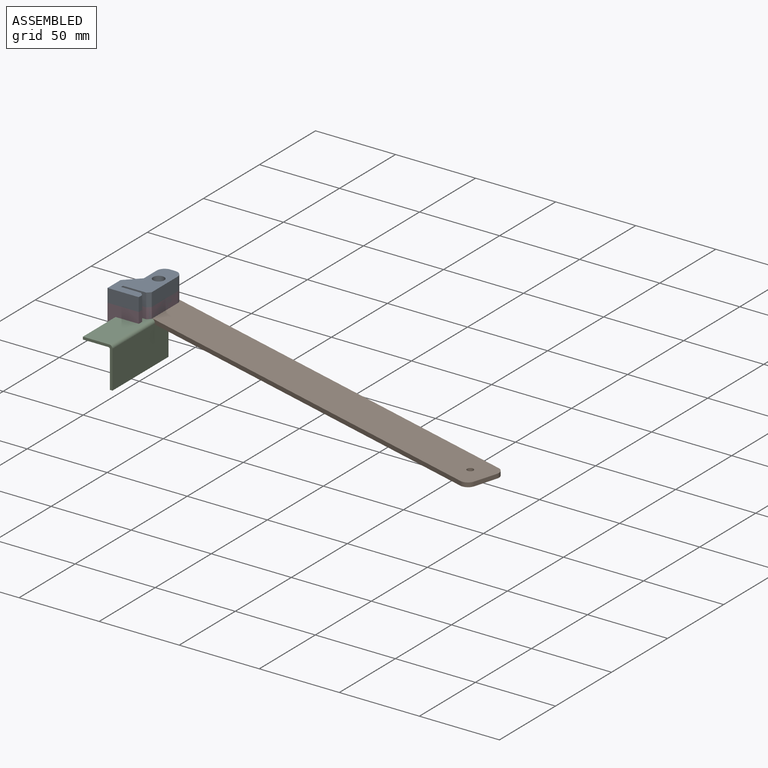
[diagram: assembled view]
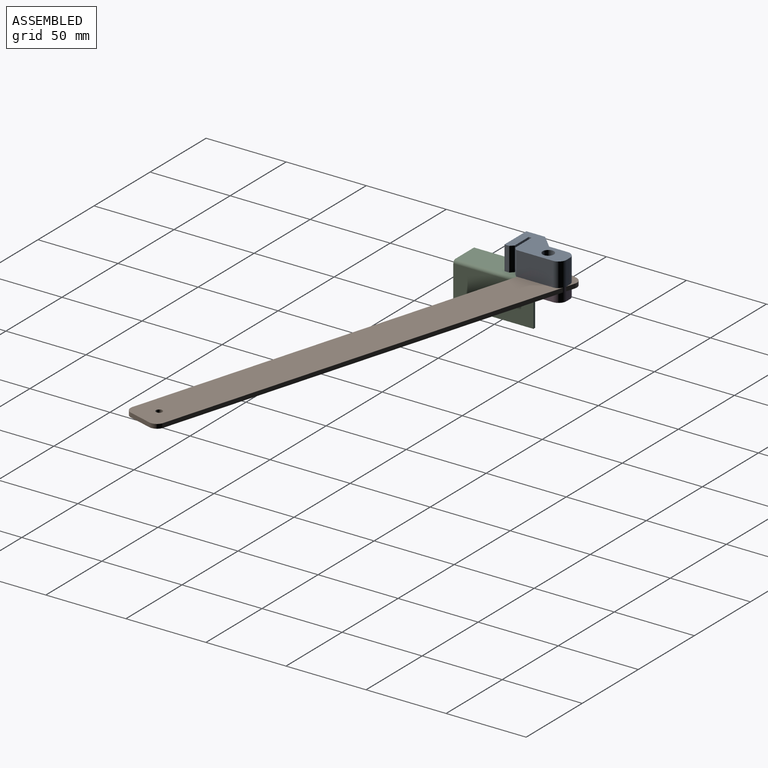
[diagram: assembled view, second angle]
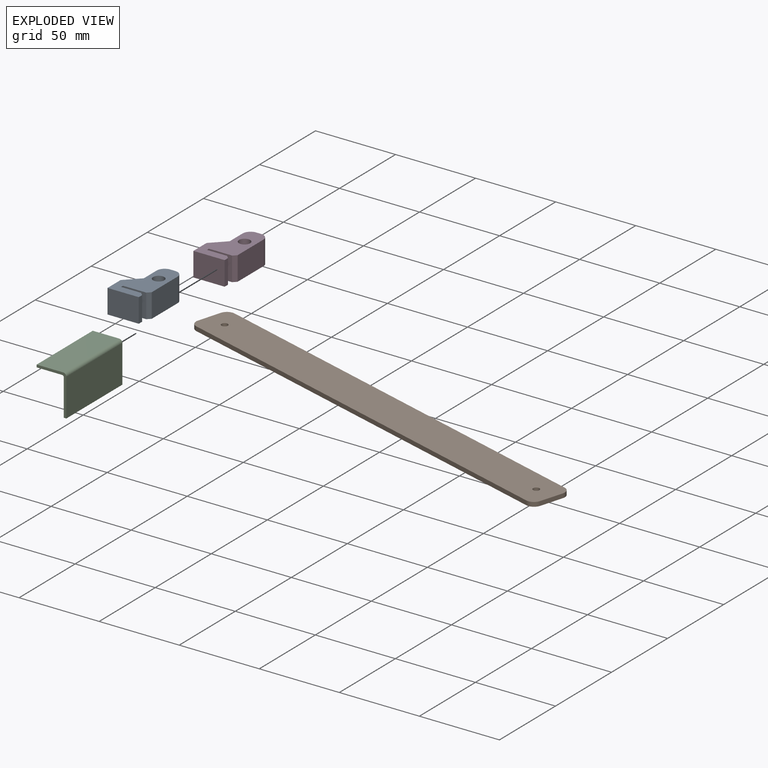
[diagram: exploded view]
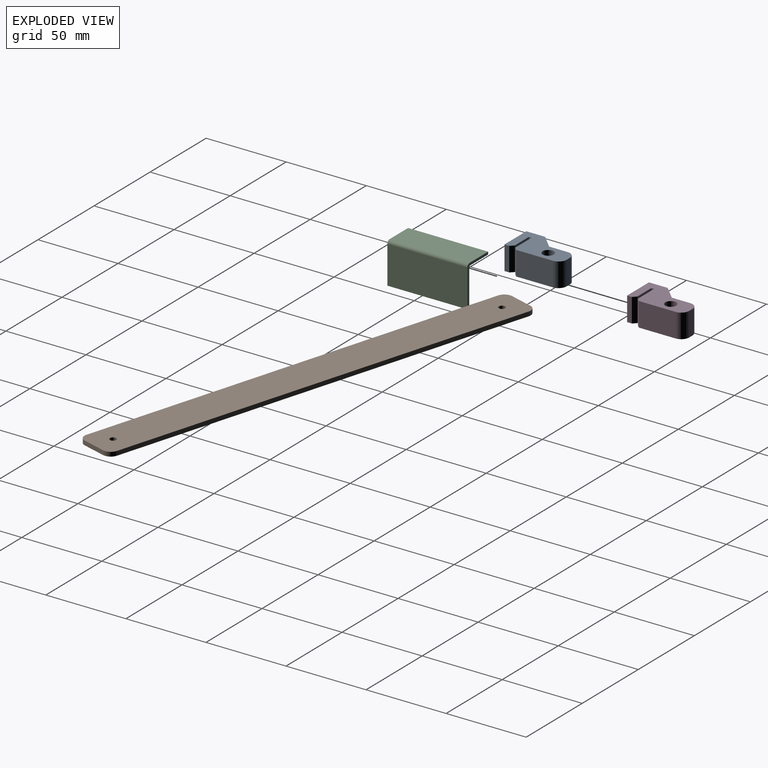
[diagram: exploded view, second angle]
ASSEMBLY  parts=4 mates=4
PART A: 19 faces, bbox 21.5x36.7x15 mm
  f0: cylinder r=2mm len=10mm, axis (0,0,-1), area 125.7mm2, adj f12,f17
  f1: plane 15x12.5mm, normal (0,1,0), area 187.5mm2, adj f2,f11,f12,f15
  f2: plane 15x1.7mm, normal (1,0,0), area 25.5mm2, adj f1,f3,f11,f12
  f3: plane 15x14.5mm, normal (0,-1,0), area 217.5mm2, adj f2,f11,f12,f16
  f4: plane 23x15mm, normal (1,0,0), area 345mm2, adj f11,f12,f13,f16
  f5: plane 15x3mm, normal (0,1,0), area 45mm2, adj f11,f12,f13,f14
  f6: plane 15x11.5mm, normal (-1,0,0), area 172.5mm2, adj f7,f11,f12,f14
  f7: plane 15x8.5mm, normal (-0.71,0.71,0), area 180.3mm2, adj f6,f8,f11,f12
  f8: plane 15x11.7mm, normal (-1,0,0), area 175.5mm2, adj f7,f9,f11,f12
  f9: plane 19.5x15mm, normal (0,-1,0), area 292.5mm2, adj f8,f10,f11,f12
  f10: plane 15x3mm, normal (1,0,0), area 45mm2, adj f9,f11,f12,f15
  f11: plane 36.7x21.5mm, normal (0,0,1), area 521.4mm2, adj f1,f2,f3,f4,f5,f6,f7,f8
  f12: plane 36.7x21.5mm, normal (0,0,-1), area 547.3mm2, adj f0,f1,f2,f3,f4,f5,f6,f7
  f13: cylinder r=5mm len=15mm, axis (0,0,1), area 117.8mm2, adj f4,f5,f11,f12
  f14: cylinder r=5mm len=15mm, axis (0,0,-1), area 117.8mm2, adj f5,f6,f11,f12
  f15: plane 15x2mm, normal (0.71,0.71,0), area 42.4mm2, adj f1,f10,f11,f12
  f16: plane 15x2mm, normal (0.71,-0.71,0), area 42.4mm2, adj f3,f4,f11,f12
  f17: plane 7x7mm, normal (0,0,1), area 25.9mm2, adj f0,f18
  f18: cylinder r=3.5mm len=7mm, axis (0,0,1), area 110mm2, adj f11,f17
PART B: 12 faces, bbox 280x25x2.7 mm
  f0: plane 280x25mm, normal (0,0,1), area 6953.4mm2, adj f2,f3,f4,f5,f6,f7,f8,f9
  f1: plane 280x25mm, normal (0,0,-1), area 6953.4mm2, adj f2,f3,f4,f5,f6,f7,f8,f9
  f2: plane 270x2.7mm, normal (0,1,0), area 729mm2, adj f0,f1,f8,f11
  f3: plane 15x2.7mm, normal (-1,0,0), area 40.5mm2, adj f0,f1,f8,f9
  f4: plane 270x2.7mm, normal (0,-1,0), area 729mm2, adj f0,f1,f9,f10
  f5: plane 15x2.7mm, normal (1,0,0), area 40.5mm2, adj f0,f1,f10,f11
  f6: cylinder r=2mm len=4mm, axis (0,0,1), area 33.9mm2, adj f0,f1
  f7: cylinder r=2mm len=4mm, axis (0,0,1), area 33.9mm2, adj f0,f1
  f8: cylinder r=5mm len=5mm, axis (0,0,1), area 21.2mm2, adj f0,f1,f2,f3
  f9: cylinder r=5mm len=5mm, axis (0,0,-1), area 21.2mm2, adj f0,f1,f3,f4
  f10: cylinder r=5mm len=5mm, axis (0,0,1), area 21.2mm2, adj f0,f1,f4,f5
  f11: cylinder r=5mm len=5mm, axis (0,0,-1), area 21.2mm2, adj f0,f1,f2,f5
PART C: 10 faces, bbox 50x18.5x25.5 mm
  f0: plane 50x23.5mm, normal (0,-1,0), area 1175mm2, adj f1,f6,f7,f8
  f1: plane 50x1.6mm, normal (0,0,-1), area 80mm2, adj f0,f2,f6,f7
  f2: plane 50x22.9mm, normal (0,1,0), area 1145mm2, adj f1,f6,f7,f9
  f3: plane 50x15.9mm, normal (0,0,-1), area 795mm2, adj f4,f6,f7,f9
  f4: plane 50x1.6mm, normal (0,1,0), area 80mm2, adj f3,f5,f6,f7
  f5: plane 50x16.5mm, normal (0,0,1), area 825mm2, adj f4,f6,f7,f8
  f6: plane 25.5x18.5mm, normal (1,0,0), area 67.2mm2, adj f0,f1,f2,f3,f4,f5,f8,f9
  f7: plane 25.5x18.5mm, normal (-1,0,0), area 67.2mm2, adj f0,f1,f2,f3,f4,f5,f8,f9
  f8: cylinder r=2mm len=50mm, axis (-1,0,0), area 157.1mm2, adj f0,f5,f6,f7
  f9: cylinder r=1mm len=50mm, axis (1,0,0), area 78.5mm2, adj f2,f3,f6,f7
PART D: same geometry as A
PLACE A rot(axis=(0,1,0),0deg) t=(-1.2,10.85,25.55)mm
PLACE B rot(axis=(0.99,-0.14,0),180deg) t=(114.67,-7.44,25.55)mm
PLACE C rot(axis=(0,0,1),90deg) t=(0.8,-25,0)mm
PLACE D rot(axis=(0,1,0),0deg) t=(-1.2,10.85,17.2)mm
MATE fastened C.f4 <-> D.f2  axis (-1,0,0) through (-17.7,0,24.7)mm
MATE planar A.f12 <-> B.f1  axis (0,0,-1) through (-1.2,24.35,25.55)mm
MATE planar D.f5 <-> A.f5  axis (0,1,0) through (-7.7,40.85,24.7)mm
MATE cylindrical A.f0 <-> B.f7  axis (0,0,-1) through (-7.7,28.35,25.55)mm
